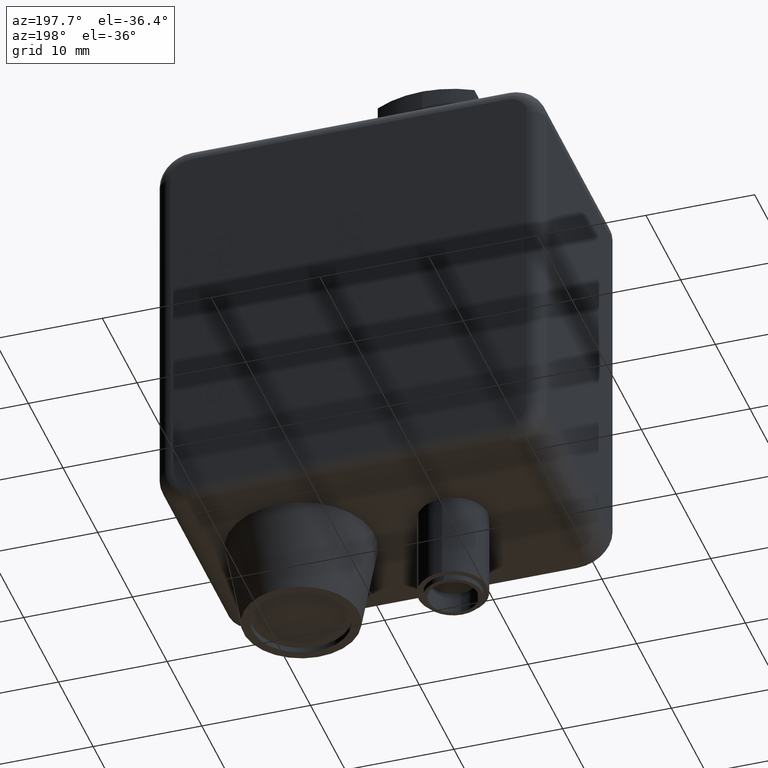
[diagram: clean part render]
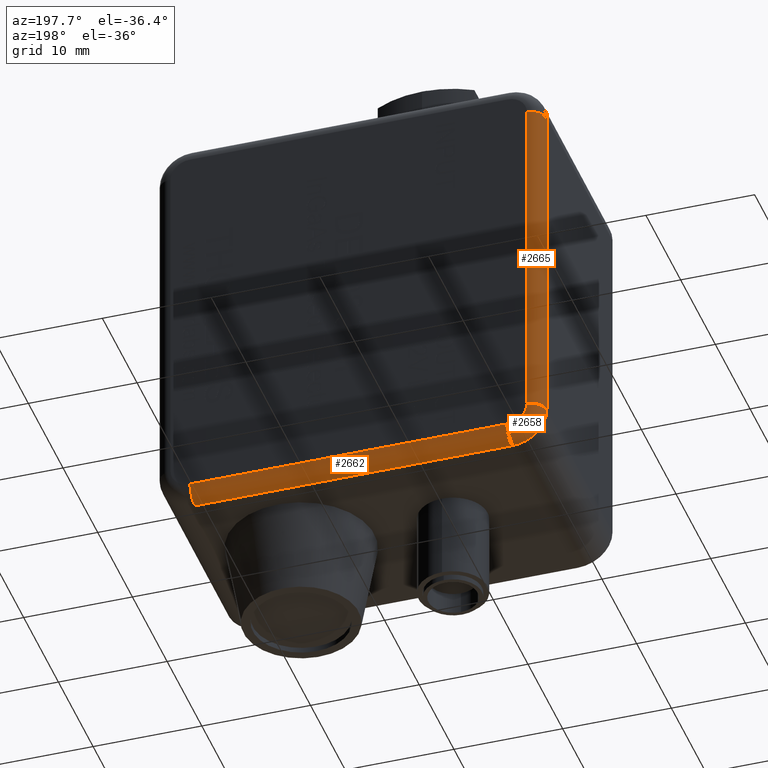
[diagram: same view with one multi-face feature highlighted, each face labeled with its STEP entity id]
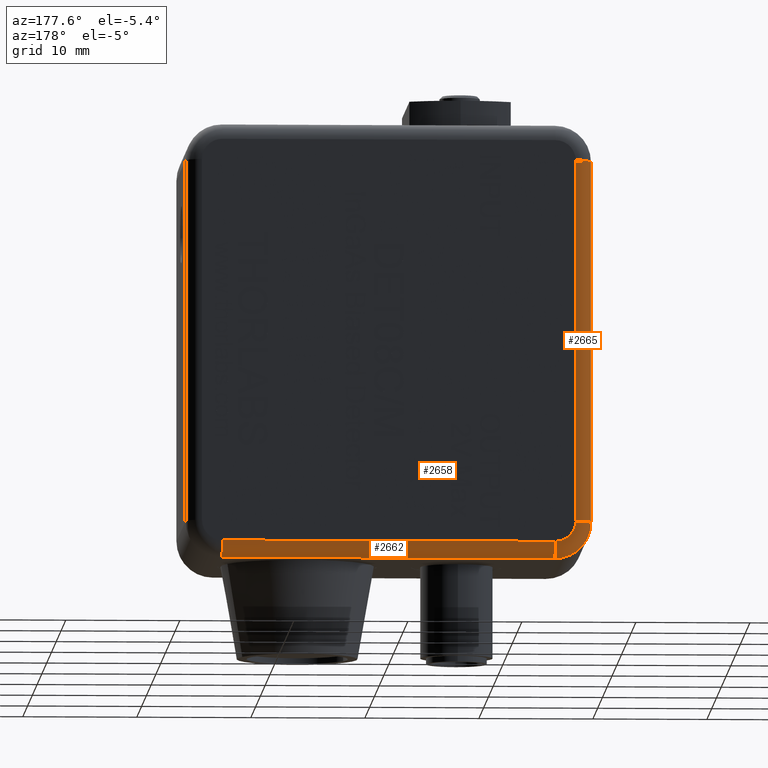
[diagram: same view with one multi-face feature highlighted, each face labeled with its STEP entity id]
A machine part, auxiliary view. The highlighted faces form ONE feature: a constant-radius fillet chain: 3 tangent blend faces with common blend radius 1.397 mm. The faces share edges in the B-rep.
A second angle (auxiliary view) of the same feature is appended — it is thin or edge-on in the first view.
Their STEP definitions:
[1] entity #2665 (Cylinder):
#2665 = ADVANCED_FACE ( 'NONE', ( #56665 ), #56682, .T. ) ;
#5762 = EDGE_CURVE ( 'NONE', #46132, #15461, #49890, .T. ) ;
#15461 = VERTEX_POINT ( 'NONE', #59388 ) ;
#15911 = CARTESIAN_POINT ( 'NONE',  ( -0.6449999999999999100, 0.8000000000000000400, -0.1249999999999999000 ) ) ;
#15914 = DIRECTION ( 'NONE',  ( 0.0000000000000000000, 0.0000000000000000000, 1.000000000000000000 ) ) ;
#31787 = AXIS2_PLACEMENT_3D ( 'NONE', #37082, #37083, #37084 ) ;
#31792 = AXIS2_PLACEMENT_3D ( 'NONE', #37105, #37106, #37107 ) ;
#36663 = ORIENTED_EDGE ( 'NONE', *, *, #91187, .T. ) ;
#36664 = ORIENTED_EDGE ( 'NONE', *, *, #91270, .F. ) ;
#36665 = ORIENTED_EDGE ( 'NONE', *, *, #91196, .F. ) ;
#36666 = ORIENTED_EDGE ( 'NONE', *, *, #5762, .F. ) ;
#37082 = CARTESIAN_POINT ( 'NONE',  ( -0.6449999999999998000, 0.7450000000000001100, -1.375000000000000000 ) ) ;
#37083 = DIRECTION ( 'NONE',  ( 0.0000000000000000000, -0.0000000000000000000, 1.000000000000000000 ) ) ;
#37084 = DIRECTION ( 'NONE',  ( 1.000000000000000000, 0.0000000000000000000, 0.0000000000000000000 ) ) ;
#37105 = CARTESIAN_POINT ( 'NONE',  ( -0.6449999999999999100, 0.7450000000000001100, -0.1249999999999999400 ) ) ;
#37106 = DIRECTION ( 'NONE',  ( 9.313118160219085700E-016, -0.0000000000000000000, 1.000000000000000000 ) ) ;
#37107 = DIRECTION ( 'NONE',  ( 1.000000000000000000, 0.0000000000000000000, -9.313118160219073900E-016 ) ) ;
#37285 = CARTESIAN_POINT ( 'NONE',  ( -0.6999999999999999600, 0.7450000000000001100, -1.375000000000000000 ) ) ;
#37286 = DIRECTION ( 'NONE',  ( -0.0000000000000000000, -0.0000000000000000000, -1.000000000000000000 ) ) ;
#37936 = CIRCLE ( 'NONE', #31787, 0.05500000000000002800 ) ;
#37951 = CIRCLE ( 'NONE', #31792, 0.05500000000000002800 ) ;
#38066 = LINE ( 'NONE', #37285, #38069 ) ;
#38069 = VECTOR ( 'NONE', #37286, 39.37007874015748100 ) ;
#39588 = VERTEX_POINT ( 'NONE', #60548 ) ;
#43970 = CARTESIAN_POINT ( 'NONE',  ( -0.6999999999999999600, 0.7450000000000001100, -0.1249999999999999000 ) ) ;
#46132 = VERTEX_POINT ( 'NONE', #69016 ) ;
#49890 = LINE ( 'NONE', #15911, #49899 ) ;
#49899 = VECTOR ( 'NONE', #15914, 39.37007874015748100 ) ;
#53788 = DIRECTION ( 'NONE',  ( -1.000000000000000000, 0.0000000000000000000, 0.0000000000000000000 ) ) ;
#53789 = CARTESIAN_POINT ( 'NONE',  ( -0.6449999999999999100, 0.7450000000000001100, 0.0000000000000000000 ) ) ;
#53790 = DIRECTION ( 'NONE',  ( 0.0000000000000000000, 0.0000000000000000000, -1.000000000000000000 ) ) ;
#56665 = FACE_OUTER_BOUND ( 'NONE', #83650, .T. ) ;
#56682 = CYLINDRICAL_SURFACE ( 'NONE', #87085, 0.05499999999999995900 ) ;
#59388 = CARTESIAN_POINT ( 'NONE',  ( -0.6449999999999999100, 0.8000000000000000400, -0.1249999999999999400 ) ) ;
#60548 = CARTESIAN_POINT ( 'NONE',  ( -0.6999999999999999600, 0.7450000000000001100, -1.375000000000000000 ) ) ;
#62116 = VERTEX_POINT ( 'NONE', #43970 ) ;
#69016 = CARTESIAN_POINT ( 'NONE',  ( -0.6449999999999998000, 0.8000000000000000400, -1.375000000000000000 ) ) ;
#83650 = EDGE_LOOP ( 'NONE', ( #36663, #36664, #36665, #36666 ) ) ;
#87085 = AXIS2_PLACEMENT_3D ( 'NONE', #53789, #53790, #53788 ) ;
#91187 = EDGE_CURVE ( 'NONE', #46132, #39588, #37936, .T. ) ;
#91196 = EDGE_CURVE ( 'NONE', #15461, #62116, #37951, .T. ) ;
#91270 = EDGE_CURVE ( 'NONE', #62116, #39588, #38066, .T. ) ;
[2] entity #2658 (Torus):
#2658 = ADVANCED_FACE ( 'NONE', ( #56656 ), #56651, .T. ) ;
#5822 = EDGE_CURVE ( 'NONE', #39384, #46132, #50115, .T. ) ;
#16784 = CARTESIAN_POINT ( 'NONE',  ( -0.5749999999999998400, 0.8000000000000000400, -1.375000000000000000 ) ) ;
#16786 = DIRECTION ( 'NONE',  ( -0.0000000000000000000, 1.000000000000000000, 0.0000000000000000000 ) ) ;
#16788 = DIRECTION ( 'NONE',  ( 0.0000000000000000000, 0.0000000000000000000, 1.000000000000000000 ) ) ;
#31787 = AXIS2_PLACEMENT_3D ( 'NONE', #37082, #37083, #37084 ) ;
#31814 = AXIS2_PLACEMENT_3D ( 'NONE', #37232, #37233, #37234 ) ;
#31818 = AXIS2_PLACEMENT_3D ( 'NONE', #37252, #37253, #37254 ) ;
#36659 = ORIENTED_EDGE ( 'NONE', *, *, #91248, .F. ) ;
#36660 = ORIENTED_EDGE ( 'NONE', *, *, #91257, .F. ) ;
#36661 = ORIENTED_EDGE ( 'NONE', *, *, #91187, .F. ) ;
#36662 = ORIENTED_EDGE ( 'NONE', *, *, #5822, .F. ) ;
#37082 = CARTESIAN_POINT ( 'NONE',  ( -0.6449999999999998000, 0.7450000000000001100, -1.375000000000000000 ) ) ;
#37083 = DIRECTION ( 'NONE',  ( 0.0000000000000000000, -0.0000000000000000000, 1.000000000000000000 ) ) ;
#37084 = DIRECTION ( 'NONE',  ( 1.000000000000000000, 0.0000000000000000000, 0.0000000000000000000 ) ) ;
#37232 = CARTESIAN_POINT ( 'NONE',  ( -0.5749999999999998400, 0.7450000000000001100, -1.444999999999999800 ) ) ;
#37233 = DIRECTION ( 'NONE',  ( 1.000000000000000000, 0.0000000000000000000, 0.0000000000000000000 ) ) ;
#37234 = DIRECTION ( 'NONE',  ( 0.0000000000000000000, 0.0000000000000000000, -1.000000000000000000 ) ) ;
#37252 = CARTESIAN_POINT ( 'NONE',  ( -0.5749999999999998400, 0.7450000000000001100, -1.375000000000000000 ) ) ;
#37253 = DIRECTION ( 'NONE',  ( 0.0000000000000000000, -1.000000000000000000, -0.0000000000000000000 ) ) ;
#37254 = DIRECTION ( 'NONE',  ( 0.0000000000000000000, 0.0000000000000000000, 1.000000000000000000 ) ) ;
#37936 = CIRCLE ( 'NONE', #31787, 0.05500000000000002800 ) ;
#38033 = CIRCLE ( 'NONE', #31814, 0.05500000000000009700 ) ;
#38035 = CIRCLE ( 'NONE', #31818, 0.1249999999999999000 ) ;
#39384 = VERTEX_POINT ( 'NONE', #60456 ) ;
#39519 = VERTEX_POINT ( 'NONE', #60517 ) ;
#39588 = VERTEX_POINT ( 'NONE', #60548 ) ;
#46132 = VERTEX_POINT ( 'NONE', #69016 ) ;
#50115 = CIRCLE ( 'NONE', #50929, 0.07000000000000007600 ) ;
#50929 = AXIS2_PLACEMENT_3D ( 'NONE', #16784, #16786, #16788 ) ;
#53778 = DIRECTION ( 'NONE',  ( -0.0000000000000000000, 1.000000000000000000, 0.0000000000000000000 ) ) ;
#53780 = CARTESIAN_POINT ( 'NONE',  ( -0.5749999999999998400, 0.7450000000000001100, -1.375000000000000000 ) ) ;
#53782 = DIRECTION ( 'NONE',  ( 0.0000000000000000000, 0.0000000000000000000, 1.000000000000000000 ) ) ;
#56651 = TOROIDAL_SURFACE ( 'NONE', #87081, 0.06999999999999999300, 0.05500000000000000000 ) ;
#56656 = FACE_OUTER_BOUND ( 'NONE', #83634, .T. ) ;
#60456 = CARTESIAN_POINT ( 'NONE',  ( -0.5749999999999998400, 0.8000000000000000400, -1.444999999999999800 ) ) ;
#60517 = CARTESIAN_POINT ( 'NONE',  ( -0.5749999999999998400, 0.7450000000000001100, -1.499999999999999800 ) ) ;
#60548 = CARTESIAN_POINT ( 'NONE',  ( -0.6999999999999999600, 0.7450000000000001100, -1.375000000000000000 ) ) ;
#69016 = CARTESIAN_POINT ( 'NONE',  ( -0.6449999999999998000, 0.8000000000000000400, -1.375000000000000000 ) ) ;
#83634 = EDGE_LOOP ( 'NONE', ( #36659, #36660, #36661, #36662 ) ) ;
#87081 = AXIS2_PLACEMENT_3D ( 'NONE', #53780, #53778, #53782 ) ;
#91187 = EDGE_CURVE ( 'NONE', #46132, #39588, #37936, .T. ) ;
#91248 = EDGE_CURVE ( 'NONE', #39519, #39384, #38033, .T. ) ;
#91257 = EDGE_CURVE ( 'NONE', #39588, #39519, #38035, .T. ) ;
[3] entity #2662 (Cylinder):
#2662 = ADVANCED_FACE ( 'NONE', ( #56607 ), #56677, .T. ) ;
#5784 = EDGE_CURVE ( 'NONE', #15450, #39384, #49971, .T. ) ;
#15450 = VERTEX_POINT ( 'NONE', #59377 ) ;
#16176 = CARTESIAN_POINT ( 'NONE',  ( -0.5749999999999998400, 0.8000000000000000400, -1.444999999999999800 ) ) ;
#16178 = DIRECTION ( 'NONE',  ( -1.000000000000000000, 0.0000000000000000000, 1.951319995474473700E-016 ) ) ;
#31788 = AXIS2_PLACEMENT_3D ( 'NONE', #37090, #37091, #37092 ) ;
#31814 = AXIS2_PLACEMENT_3D ( 'NONE', #37232, #37233, #37234 ) ;
#36667 = ORIENTED_EDGE ( 'NONE', *, *, #91248, .T. ) ;
#36668 = ORIENTED_EDGE ( 'NONE', *, *, #5784, .F. ) ;
#36669 = ORIENTED_EDGE ( 'NONE', *, *, #91191, .F. ) ;
#36670 = ORIENTED_EDGE ( 'NONE', *, *, #91272, .F. ) ;
#37090 = CARTESIAN_POINT ( 'NONE',  ( 0.5750000000000000700, 0.7450000000000001100, -1.445000000000000100 ) ) ;
#37091 = DIRECTION ( 'NONE',  ( 1.000000000000000000, -0.0000000000000000000, 0.0000000000000000000 ) ) ;
#37092 = DIRECTION ( 'NONE',  ( 0.0000000000000000000, 0.0000000000000000000, -1.000000000000000000 ) ) ;
#37232 = CARTESIAN_POINT ( 'NONE',  ( -0.5749999999999998400, 0.7450000000000001100, -1.444999999999999800 ) ) ;
#37233 = DIRECTION ( 'NONE',  ( 1.000000000000000000, 0.0000000000000000000, 0.0000000000000000000 ) ) ;
#37234 = DIRECTION ( 'NONE',  ( 0.0000000000000000000, 0.0000000000000000000, -1.000000000000000000 ) ) ;
#37289 = CARTESIAN_POINT ( 'NONE',  ( 0.5750000000000000700, 0.7450000000000001100, -1.500000000000000200 ) ) ;
#37290 = DIRECTION ( 'NONE',  ( 1.000000000000000000, -0.0000000000000000000, -1.951319995474473700E-016 ) ) ;
#37940 = CIRCLE ( 'NONE', #31788, 0.05500000000000009700 ) ;
#38033 = CIRCLE ( 'NONE', #31814, 0.05500000000000009700 ) ;
#38070 = LINE ( 'NONE', #37289, #38073 ) ;
#38073 = VECTOR ( 'NONE', #37290, 39.37007874015748100 ) ;
#39384 = VERTEX_POINT ( 'NONE', #60456 ) ;
#39519 = VERTEX_POINT ( 'NONE', #60517 ) ;
#39660 = VERTEX_POINT ( 'NONE', #60579 ) ;
#49971 = LINE ( 'NONE', #16176, #49981 ) ;
#49981 = VECTOR ( 'NONE', #16178, 39.37007874015748100 ) ;
#53785 = DIRECTION ( 'NONE',  ( 0.0000000000000000000, 0.0000000000000000000, -1.000000000000000000 ) ) ;
#53786 = CARTESIAN_POINT ( 'NONE',  ( -0.7000000000000001800, 0.7450000000000001100, -1.444999999999999800 ) ) ;
#53787 = DIRECTION ( 'NONE',  ( 1.000000000000000000, 0.0000000000000000000, -1.951319995474473700E-016 ) ) ;
#56607 = FACE_OUTER_BOUND ( 'NONE', #83623, .T. ) ;
#56677 = CYLINDRICAL_SURFACE ( 'NONE', #87084, 0.05500000000000009700 ) ;
#59377 = CARTESIAN_POINT ( 'NONE',  ( 0.5750000000000000700, 0.8000000000000000400, -1.445000000000000300 ) ) ;
#60456 = CARTESIAN_POINT ( 'NONE',  ( -0.5749999999999998400, 0.8000000000000000400, -1.444999999999999800 ) ) ;
#60517 = CARTESIAN_POINT ( 'NONE',  ( -0.5749999999999998400, 0.7450000000000001100, -1.499999999999999800 ) ) ;
#60579 = CARTESIAN_POINT ( 'NONE',  ( 0.5750000000000000700, 0.7450000000000001100, -1.500000000000000200 ) ) ;
#83623 = EDGE_LOOP ( 'NONE', ( #36667, #36668, #36669, #36670 ) ) ;
#87084 = AXIS2_PLACEMENT_3D ( 'NONE', #53786, #53787, #53785 ) ;
#91191 = EDGE_CURVE ( 'NONE', #39660, #15450, #37940, .T. ) ;
#91248 = EDGE_CURVE ( 'NONE', #39519, #39384, #38033, .T. ) ;
#91272 = EDGE_CURVE ( 'NONE', #39519, #39660, #38070, .T. ) ;